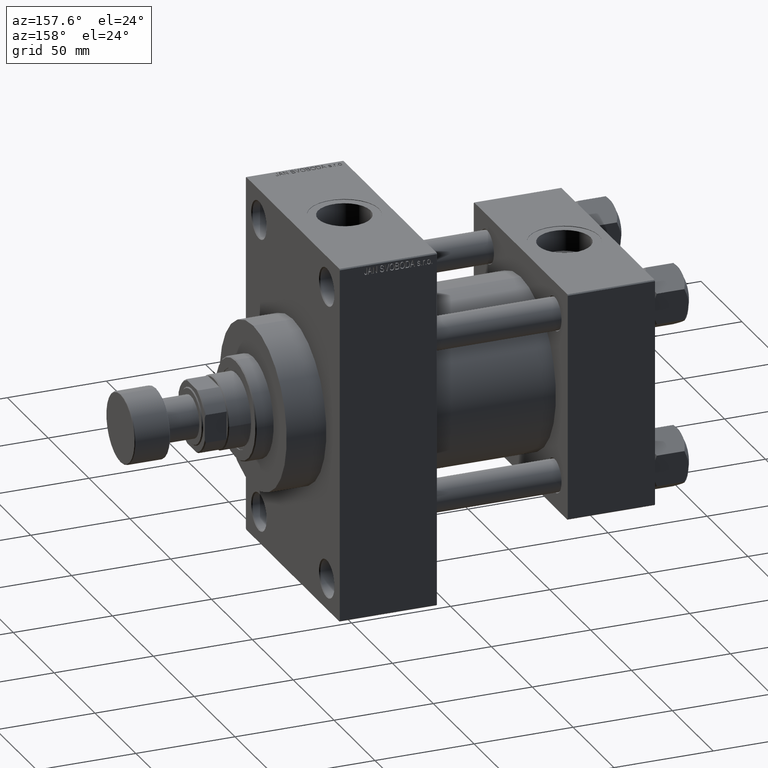
[diagram: clean part render]
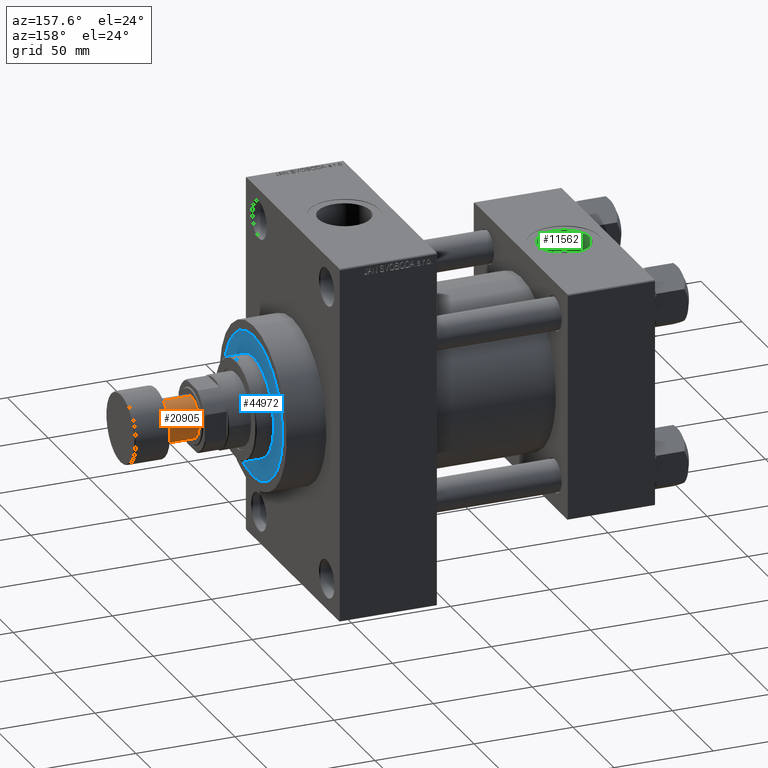
[diagram: same view with three faces highlighted in distinct colors, each labeled with its STEP entity id]
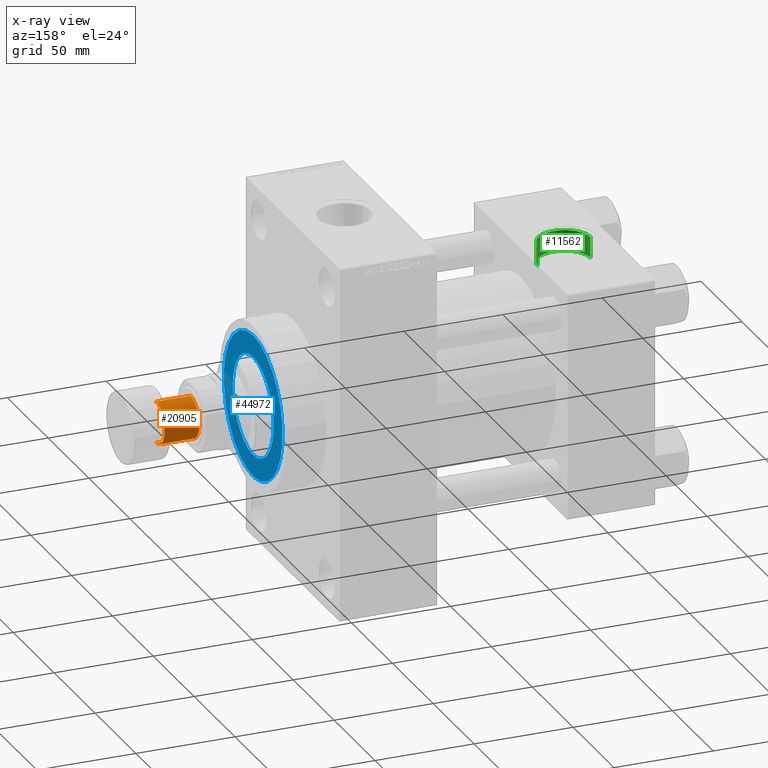
[diagram: x-ray of the same camera — body ghosted, the three highlighted faces saturated]
A machine part, auxiliary view with three faces highlighted in distinct colors.
The next image is the same camera in x-ray (body ghosted, the three faces saturated) — at least one of them is partly hidden behind the body in this view.
Their STEP definitions:

[orange] entity #20905 — the highlighted cylindrical surface (edge-blend (fillet) strip) has radius 10.5 mm, axis along (1, 0, 0).
#507 = EDGE_CURVE ( 'NONE', #6457, #44911, #4685, .T. ) ;
#510 = CARTESIAN_POINT ( 'NONE',  ( 10.50000000000000000, 0.000000000000000000, -35.50000000000000711 ) ) ;
#566 = DIRECTION ( 'NONE',  ( 0.000000000000000000, 0.000000000000000000, -1.000000000000000000 ) ) ;
#811 = CARTESIAN_POINT ( 'NONE',  ( -10.50000000000000000, 1.285879139104720831E-15, -18.00000000000000000 ) ) ;
#4685 = CIRCLE ( 'NONE', #12410, 10.50000000000000000 ) ;
#5864 = AXIS2_PLACEMENT_3D ( 'NONE', #28417, #13823, #10176 ) ;
#6457 = VERTEX_POINT ( 'NONE', #7577 ) ;
#6498 = EDGE_LOOP ( 'NONE', ( #14098, #16483, #34035, #8009 ) ) ;
#7577 = CARTESIAN_POINT ( 'NONE',  ( -10.50000000000000000, 1.285879139104720831E-15, -35.50000000000000711 ) ) ;
#8009 = ORIENTED_EDGE ( 'NONE', *, *, #37991, .F. ) ;
#10176 = DIRECTION ( 'NONE',  ( -1.000000000000000000, 0.000000000000000000, 0.000000000000000000 ) ) ;
#12410 = AXIS2_PLACEMENT_3D ( 'NONE', #21990, #566, #41443 ) ;
#13424 = DIRECTION ( 'NONE',  ( 1.000000000000000000, 0.000000000000000000, 0.000000000000000000 ) ) ;
#13823 = DIRECTION ( 'NONE',  ( 0.000000000000000000, 0.000000000000000000, -1.000000000000000000 ) ) ;
#14098 = ORIENTED_EDGE ( 'NONE', *, *, #507, .F. ) ;
#15480 = LINE ( 'NONE', #45399, #30704 ) ;
#16483 = ORIENTED_EDGE ( 'NONE', *, *, #25360, .T. ) ;
#17249 = EDGE_CURVE ( 'NONE', #31099, #39453, #19842, .T. ) ;
#17945 = CARTESIAN_POINT ( 'NONE',  ( 10.50000000000000000, 0.000000000000000000, -18.00000000000000000 ) ) ;
#19842 = CIRCLE ( 'NONE', #5864, 10.50000000000000000 ) ;
#20701 = CARTESIAN_POINT ( 'NONE',  ( 10.50000000000000000, 0.000000000000000000, -35.50000000000000711 ) ) ;
#20905 = ADVANCED_FACE ( 'NONE', ( #31911 ), #32875, .T. ) ;
#21990 = CARTESIAN_POINT ( 'NONE',  ( 0.000000000000000000, 0.000000000000000000, -35.50000000000000711 ) ) ;
#24700 = AXIS2_PLACEMENT_3D ( 'NONE', #43106, #25566, #13424 ) ;
#25360 = EDGE_CURVE ( 'NONE', #6457, #31099, #15480, .T. ) ;
#25566 = DIRECTION ( 'NONE',  ( -0.000000000000000000, -0.000000000000000000, 1.000000000000000000 ) ) ;
#26890 = DIRECTION ( 'NONE',  ( -0.000000000000000000, -0.000000000000000000, 1.000000000000000000 ) ) ;
#28417 = CARTESIAN_POINT ( 'NONE',  ( 0.000000000000000000, 0.000000000000000000, -18.00000000000000000 ) ) ;
#30704 = VECTOR ( 'NONE', #26890, 1000.000000000000000 ) ;
#31099 = VERTEX_POINT ( 'NONE', #811 ) ;
#31873 = DIRECTION ( 'NONE',  ( -0.000000000000000000, -0.000000000000000000, 1.000000000000000000 ) ) ;
#31911 = FACE_OUTER_BOUND ( 'NONE', #6498, .T. ) ;
#32875 = CYLINDRICAL_SURFACE ( 'NONE', #24700, 10.50000000000000000 ) ;
#34035 = ORIENTED_EDGE ( 'NONE', *, *, #17249, .T. ) ;
#37991 = EDGE_CURVE ( 'NONE', #44911, #39453, #38704, .T. ) ;
#38704 = LINE ( 'NONE', #20701, #46547 ) ;
#39453 = VERTEX_POINT ( 'NONE', #17945 ) ;
#41443 = DIRECTION ( 'NONE',  ( -1.000000000000000000, 0.000000000000000000, 0.000000000000000000 ) ) ;
#43106 = CARTESIAN_POINT ( 'NONE',  ( 0.000000000000000000, 0.000000000000000000, -35.50000000000000711 ) ) ;
#44911 = VERTEX_POINT ( 'NONE', #510 ) ;
#45399 = CARTESIAN_POINT ( 'NONE',  ( -10.50000000000000000, 1.285879139104720831E-15, -35.50000000000000711 ) ) ;
#46547 = VECTOR ( 'NONE', #31873, 1000.000000000000000 ) ;

[blue] entity #44972 — the highlighted planar face has unit normal (1, 0, 0).
#152 = VERTEX_POINT ( 'NONE', #22053 ) ;
#1388 = CARTESIAN_POINT ( 'NONE',  ( 0.000000000000000000, 0.000000000000000000, 43.25999999999999801 ) ) ;
#1480 = DIRECTION ( 'NONE',  ( 0.000000000000000000, 0.000000000000000000, 1.000000000000000000 ) ) ;
#2299 = EDGE_LOOP ( 'NONE', ( #44855, #7608 ) ) ;
#4599 = CIRCLE ( 'NONE', #21563, 36.00000000000000000 ) ;
#5609 = FACE_OUTER_BOUND ( 'NONE', #7007, .T. ) ;
#5751 = DIRECTION ( 'NONE',  ( 1.000000000000000000, 0.000000000000000000, 0.000000000000000000 ) ) ;
#7007 = EDGE_LOOP ( 'NONE', ( #11425, #15955 ) ) ;
#7608 = ORIENTED_EDGE ( 'NONE', *, *, #37970, .F. ) ;
#9901 = VERTEX_POINT ( 'NONE', #18736 ) ;
#11425 = ORIENTED_EDGE ( 'NONE', *, *, #31713, .T. ) ;
#14563 = CARTESIAN_POINT ( 'NONE',  ( -36.00000000000000000, 0.000000000000000000, 43.25999999999999801 ) ) ;
#15955 = ORIENTED_EDGE ( 'NONE', *, *, #35601, .T. ) ;
#16406 = CARTESIAN_POINT ( 'NONE',  ( 0.000000000000000000, 0.000000000000000000, 43.25999999999999801 ) ) ;
#16790 = DIRECTION ( 'NONE',  ( 1.000000000000000000, 0.000000000000000000, -0.000000000000000000 ) ) ;
#18057 = VERTEX_POINT ( 'NONE', #14563 ) ;
#18736 = CARTESIAN_POINT ( 'NONE',  ( 36.00000000000000000, 4.408728476930470856E-15, 43.25999999999999801 ) ) ;
#20310 = CIRCLE ( 'NONE', #38961, 25.00000000000000000 ) ;
#20446 = DIRECTION ( 'NONE',  ( 0.000000000000000000, 0.000000000000000000, 1.000000000000000000 ) ) ;
#21059 = CARTESIAN_POINT ( 'NONE',  ( 0.000000000000000000, 0.000000000000000000, 43.25999999999999801 ) ) ;
#21563 = AXIS2_PLACEMENT_3D ( 'NONE', #21059, #35892, #5751 ) ;
#21606 = CARTESIAN_POINT ( 'NONE',  ( 25.00000000000000000, 3.061616997868383043E-15, 43.25999999999999801 ) ) ;
#22053 = CARTESIAN_POINT ( 'NONE',  ( -25.00000000000000000, 0.000000000000000000, 43.25999999999999801 ) ) ;
#23120 = CIRCLE ( 'NONE', #34008, 36.00000000000000000 ) ;
#23369 = CARTESIAN_POINT ( 'NONE',  ( 0.000000000000000000, 0.000000000000000000, 43.25999999999999801 ) ) ;
#23421 = AXIS2_PLACEMENT_3D ( 'NONE', #42332, #20446, #16790 ) ;
#26956 = VERTEX_POINT ( 'NONE', #21606 ) ;
#28125 = DIRECTION ( 'NONE',  ( 1.000000000000000000, 0.000000000000000000, 0.000000000000000000 ) ) ;
#31713 = EDGE_CURVE ( 'NONE', #18057, #9901, #23120, .T. ) ;
#34008 = AXIS2_PLACEMENT_3D ( 'NONE', #1388, #38612, #28125 ) ;
#34107 = AXIS2_PLACEMENT_3D ( 'NONE', #23369, #1480, #46735 ) ;
#34791 = PLANE ( 'NONE',  #23421 ) ;
#35378 = DIRECTION ( 'NONE',  ( 0.000000000000000000, 0.000000000000000000, 1.000000000000000000 ) ) ;
#35601 = EDGE_CURVE ( 'NONE', #9901, #18057, #4599, .T. ) ;
#35892 = DIRECTION ( 'NONE',  ( 0.000000000000000000, 0.000000000000000000, 1.000000000000000000 ) ) ;
#37970 = EDGE_CURVE ( 'NONE', #26956, #152, #44993, .T. ) ;
#38612 = DIRECTION ( 'NONE',  ( 0.000000000000000000, 0.000000000000000000, 1.000000000000000000 ) ) ;
#38961 = AXIS2_PLACEMENT_3D ( 'NONE', #16406, #35378, #46104 ) ;
#41855 = FACE_BOUND ( 'NONE', #2299, .T. ) ;
#42332 = CARTESIAN_POINT ( 'NONE',  ( 0.000000000000000000, 0.000000000000000000, 43.25999999999999801 ) ) ;
#43259 = EDGE_CURVE ( 'NONE', #152, #26956, #20310, .T. ) ;
#44855 = ORIENTED_EDGE ( 'NONE', *, *, #43259, .F. ) ;
#44972 = ADVANCED_FACE ( 'NONE', ( #41855, #5609 ), #34791, .T. ) ;
#44993 = CIRCLE ( 'NONE', #34107, 25.00000000000000000 ) ;
#46104 = DIRECTION ( 'NONE',  ( 1.000000000000000000, 0.000000000000000000, 0.000000000000000000 ) ) ;
#46735 = DIRECTION ( 'NONE',  ( 1.000000000000000000, 0.000000000000000000, 0.000000000000000000 ) ) ;

[green] entity #11562 — the highlighted cylindrical surface (edge-blend (fillet) strip) has radius 13.22 mm, axis along (0, 0, 1).
#1024 = AXIS2_PLACEMENT_3D ( 'NONE', #1752, #20493, #35320 ) ;
#1672 = CARTESIAN_POINT ( 'NONE',  ( 35.21999999999999886, -1.214306433183765124E-14, 46.70000000000000284 ) ) ;
#1752 = CARTESIAN_POINT ( 'NONE',  ( 22.00000000000000000, -1.214306433183765124E-14, 57.30000000000001137 ) ) ;
#3974 = DIRECTION ( 'NONE',  ( 1.000000000000000000, 0.000000000000000000, 0.000000000000000000 ) ) ;
#6938 = DIRECTION ( 'NONE',  ( 1.000000000000000000, 0.000000000000000000, 0.000000000000000000 ) ) ;
#8104 = EDGE_CURVE ( 'NONE', #47387, #14467, #43746, .T. ) ;
#8106 = CARTESIAN_POINT ( 'NONE',  ( 22.00000000000000000, -1.214306433183765124E-14, 46.70000000000000284 ) ) ;
#9690 = DIRECTION ( 'NONE',  ( -0.000000000000000000, -0.000000000000000000, 1.000000000000000000 ) ) ;
#10141 = VERTEX_POINT ( 'NONE', #19160 ) ;
#10155 = DIRECTION ( 'NONE',  ( -0.000000000000000000, -0.000000000000000000, 1.000000000000000000 ) ) ;
#11506 = CYLINDRICAL_SURFACE ( 'NONE', #40657, 13.22000000000000242 ) ;
#11562 = ADVANCED_FACE ( 'NONE', ( #26094 ), #11506, .F. ) ;
#12405 = ORIENTED_EDGE ( 'NONE', *, *, #18203, .F. ) ;
#13335 = CARTESIAN_POINT ( 'NONE',  ( 8.779999999999994031, -1.052408126336485088E-14, 46.70000000000000284 ) ) ;
#13813 = CIRCLE ( 'NONE', #41026, 13.22000000000000242 ) ;
#14467 = VERTEX_POINT ( 'NONE', #24034 ) ;
#15061 = CARTESIAN_POINT ( 'NONE',  ( 8.779999999999994031, -1.052408126336485088E-14, 46.70000000000000284 ) ) ;
#18203 = EDGE_CURVE ( 'NONE', #10141, #14467, #43022, .T. ) ;
#19160 = CARTESIAN_POINT ( 'NONE',  ( 35.21999999999999886, -1.214306433183765124E-14, 46.70000000000000284 ) ) ;
#20493 = DIRECTION ( 'NONE',  ( 0.000000000000000000, 0.000000000000000000, 1.000000000000000000 ) ) ;
#21149 = EDGE_LOOP ( 'NONE', ( #24368, #34572, #24833, #12405 ) ) ;
#23289 = EDGE_CURVE ( 'NONE', #30302, #47387, #46684, .T. ) ;
#24034 = CARTESIAN_POINT ( 'NONE',  ( 35.21999999999999886, -1.214306433183765124E-14, 57.30000000000001137 ) ) ;
#24368 = ORIENTED_EDGE ( 'NONE', *, *, #32311, .F. ) ;
#24833 = ORIENTED_EDGE ( 'NONE', *, *, #8104, .T. ) ;
#26094 = FACE_OUTER_BOUND ( 'NONE', #21149, .T. ) ;
#30302 = VERTEX_POINT ( 'NONE', #15061 ) ;
#32311 = EDGE_CURVE ( 'NONE', #30302, #10141, #13813, .T. ) ;
#32708 = CARTESIAN_POINT ( 'NONE',  ( 22.00000000000000000, -1.214306433183765124E-14, 46.70000000000000284 ) ) ;
#34572 = ORIENTED_EDGE ( 'NONE', *, *, #23289, .T. ) ;
#35320 = DIRECTION ( 'NONE',  ( 1.000000000000000000, 0.000000000000000000, 0.000000000000000000 ) ) ;
#36359 = DIRECTION ( 'NONE',  ( 0.000000000000000000, 0.000000000000000000, 1.000000000000000000 ) ) ;
#36435 = CARTESIAN_POINT ( 'NONE',  ( 8.779999999999994031, -1.052408126336485088E-14, 57.30000000000001137 ) ) ;
#37782 = DIRECTION ( 'NONE',  ( -0.000000000000000000, -0.000000000000000000, 1.000000000000000000 ) ) ;
#38384 = VECTOR ( 'NONE', #10155, 1000.000000000000000 ) ;
#40054 = VECTOR ( 'NONE', #9690, 1000.000000000000000 ) ;
#40657 = AXIS2_PLACEMENT_3D ( 'NONE', #8106, #37782, #3974 ) ;
#41026 = AXIS2_PLACEMENT_3D ( 'NONE', #32708, #36359, #6938 ) ;
#43022 = LINE ( 'NONE', #1672, #40054 ) ;
#43746 = CIRCLE ( 'NONE', #1024, 13.22000000000000242 ) ;
#46684 = LINE ( 'NONE', #13335, #38384 ) ;
#47387 = VERTEX_POINT ( 'NONE', #36435 ) ;